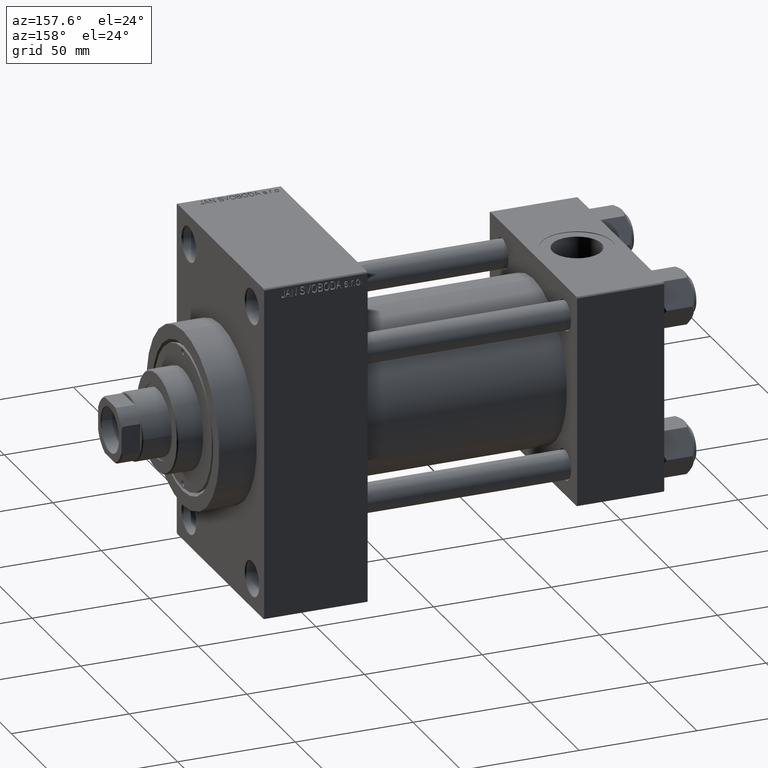
[diagram: clean part render]
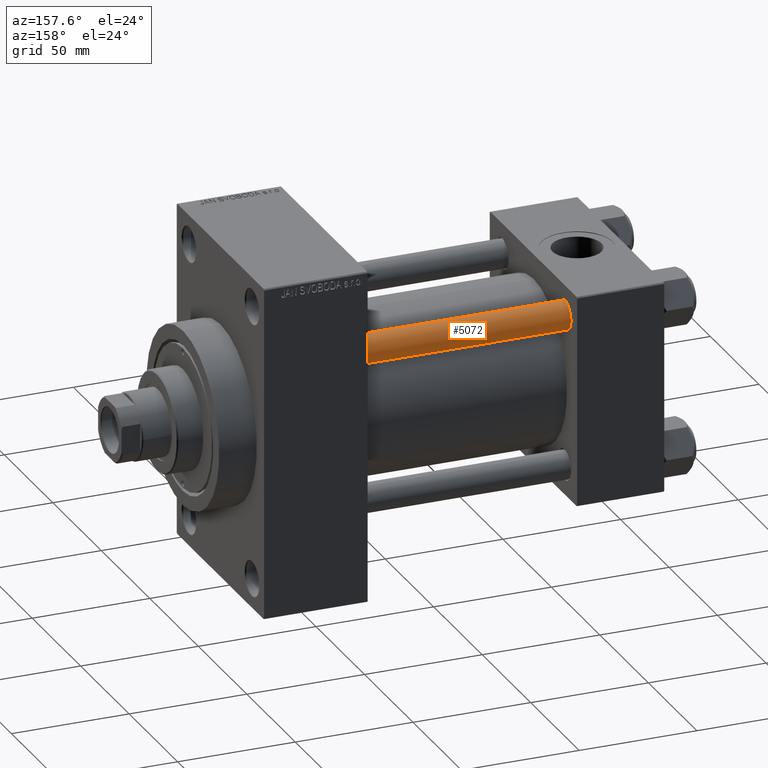
[diagram: same view with one face highlighted and labeled with its STEP entity id]
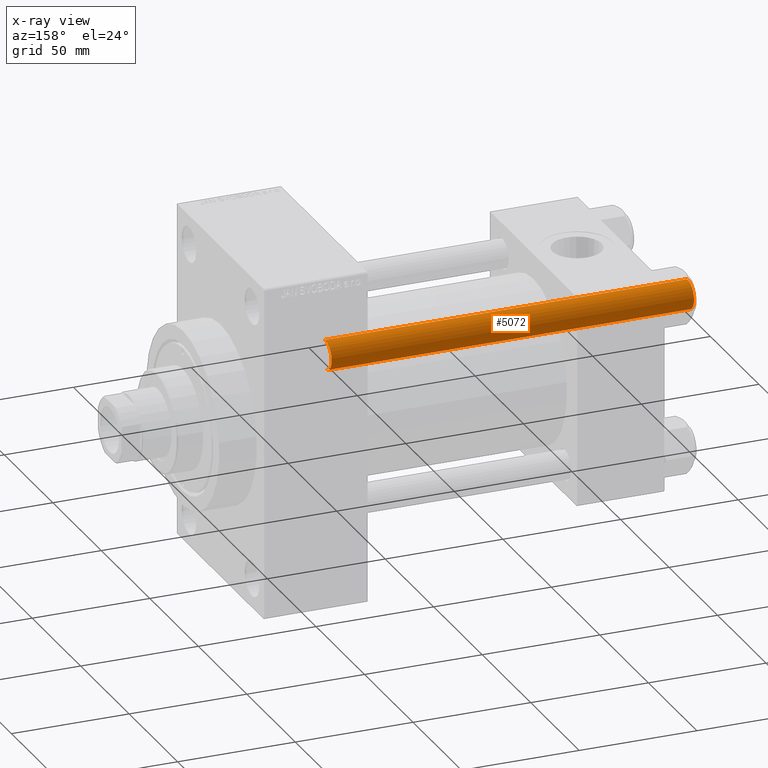
[diagram: x-ray of the same camera — body ghosted, the highlighted face saturated]
A machine part, auxiliary view. The second image highlights one B-rep face of the part: STEP entity #5072.
The next image is the same camera in x-ray: the body ghosted, the highlighted face saturated — about 0% of this face is hidden behind the body in this view.
In plain terms, the highlighted cylindrical surface (edge-blend (fillet) strip) has radius 6 mm, axis along (-1, -0, 0).
Its self-contained STEP definition (entity closure, byte-faithful):
#69 = CIRCLE ( 'NONE', #36850, 6.000000000000000888 ) ;
#1149 = EDGE_CURVE ( 'NONE', #29892, #43492, #69, .T. ) ;
#2170 = DIRECTION ( 'NONE',  ( 1.000000000000000000, 0.000000000000000000, 0.000000000000000000 ) ) ;
#3232 = VECTOR ( 'NONE', #4594, 1000.000000000000000 ) ;
#4041 = LINE ( 'NONE', #22520, #36015 ) ;
#4105 = CARTESIAN_POINT ( 'NONE',  ( 0.000000000000000000, 0.000000000000000000, 155.0000000000000000 ) ) ;
#4594 = DIRECTION ( 'NONE',  ( -0.000000000000000000, -0.000000000000000000, -1.000000000000000000 ) ) ;
#5072 = ADVANCED_FACE ( 'NONE', ( #32908 ), #36980, .T. ) ;
#7988 = EDGE_CURVE ( 'NONE', #16860, #15814, #11318, .T. ) ;
#9495 = ORIENTED_EDGE ( 'NONE', *, *, #25648, .F. ) ;
#9819 = CARTESIAN_POINT ( 'NONE',  ( 0.000000000000000000, 0.000000000000000000, 154.5000000000000000 ) ) ;
#10811 = DIRECTION ( 'NONE',  ( -1.000000000000000000, 0.000000000000000000, 0.000000000000000000 ) ) ;
#11318 = CIRCLE ( 'NONE', #33557, 6.000000000000000888 ) ;
#13196 = DIRECTION ( 'NONE',  ( 0.000000000000000000, 0.000000000000000000, -1.000000000000000000 ) ) ;
#15814 = VERTEX_POINT ( 'NONE', #41828 ) ;
#16860 = VERTEX_POINT ( 'NONE', #32662 ) ;
#17356 = EDGE_CURVE ( 'NONE', #15814, #29892, #4041, .T. ) ;
#20880 = AXIS2_PLACEMENT_3D ( 'NONE', #4105, #21639, #10811 ) ;
#21639 = DIRECTION ( 'NONE',  ( -0.000000000000000000, -0.000000000000000000, -1.000000000000000000 ) ) ;
#21969 = EDGE_LOOP ( 'NONE', ( #34572, #23555, #46696, #9495 ) ) ;
#22520 = CARTESIAN_POINT ( 'NONE',  ( 6.000000000000000888, 7.347880794884120722E-16, 155.0000000000000000 ) ) ;
#23555 = ORIENTED_EDGE ( 'NONE', *, *, #17356, .T. ) ;
#25648 = EDGE_CURVE ( 'NONE', #16860, #43492, #45118, .T. ) ;
#29892 = VERTEX_POINT ( 'NONE', #32524 ) ;
#31615 = DIRECTION ( 'NONE',  ( -0.000000000000000000, -0.000000000000000000, 1.000000000000000000 ) ) ;
#32524 = CARTESIAN_POINT ( 'NONE',  ( 6.000000000000000888, 7.347880794884120722E-16, 0.4999999999999726885 ) ) ;
#32662 = CARTESIAN_POINT ( 'NONE',  ( -6.000000000000000888, 0.000000000000000000, 154.5000000000000000 ) ) ;
#32908 = FACE_OUTER_BOUND ( 'NONE', #21969, .T. ) ;
#33557 = AXIS2_PLACEMENT_3D ( 'NONE', #9819, #13196, #2170 ) ;
#34572 = ORIENTED_EDGE ( 'NONE', *, *, #7988, .T. ) ;
#34574 = CARTESIAN_POINT ( 'NONE',  ( -6.000000000000000888, 0.000000000000000000, 155.0000000000000000 ) ) ;
#36015 = VECTOR ( 'NONE', #37157, 1000.000000000000000 ) ;
#36850 = AXIS2_PLACEMENT_3D ( 'NONE', #45981, #31615, #46922 ) ;
#36980 = CYLINDRICAL_SURFACE ( 'NONE', #20880, 6.000000000000000888 ) ;
#37157 = DIRECTION ( 'NONE',  ( -0.000000000000000000, -0.000000000000000000, -1.000000000000000000 ) ) ;
#41828 = CARTESIAN_POINT ( 'NONE',  ( 6.000000000000000888, 7.347880794884120722E-16, 154.5000000000000000 ) ) ;
#43492 = VERTEX_POINT ( 'NONE', #46441 ) ;
#45118 = LINE ( 'NONE', #34574, #3232 ) ;
#45981 = CARTESIAN_POINT ( 'NONE',  ( 0.000000000000000000, 0.000000000000000000, 0.4999999999999726885 ) ) ;
#46441 = CARTESIAN_POINT ( 'NONE',  ( -6.000000000000000888, 0.000000000000000000, 0.4999999999999726885 ) ) ;
#46696 = ORIENTED_EDGE ( 'NONE', *, *, #1149, .T. ) ;
#46922 = DIRECTION ( 'NONE',  ( 1.000000000000000000, 0.000000000000000000, 0.000000000000000000 ) ) ;